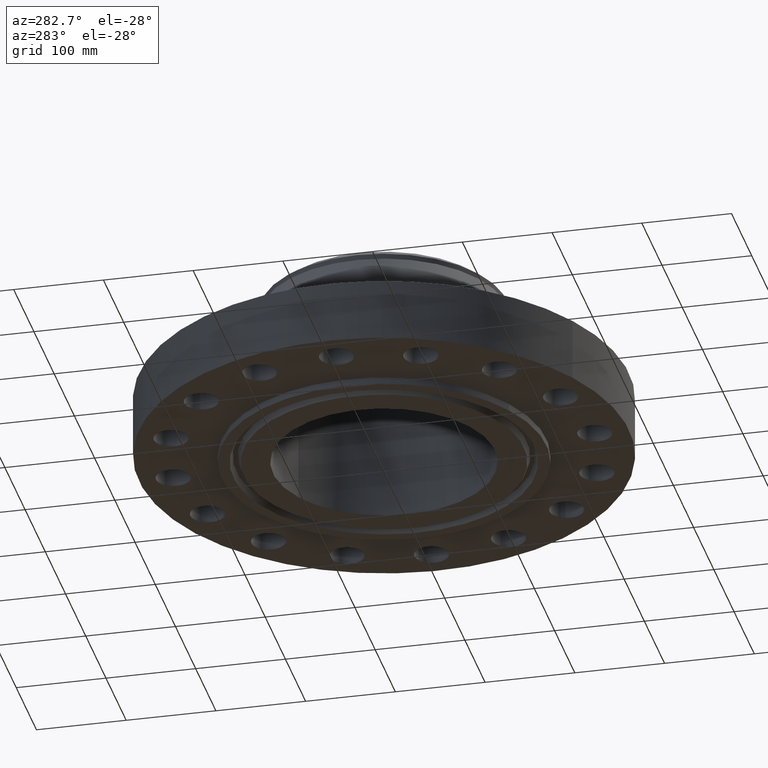
[diagram: clean part render]
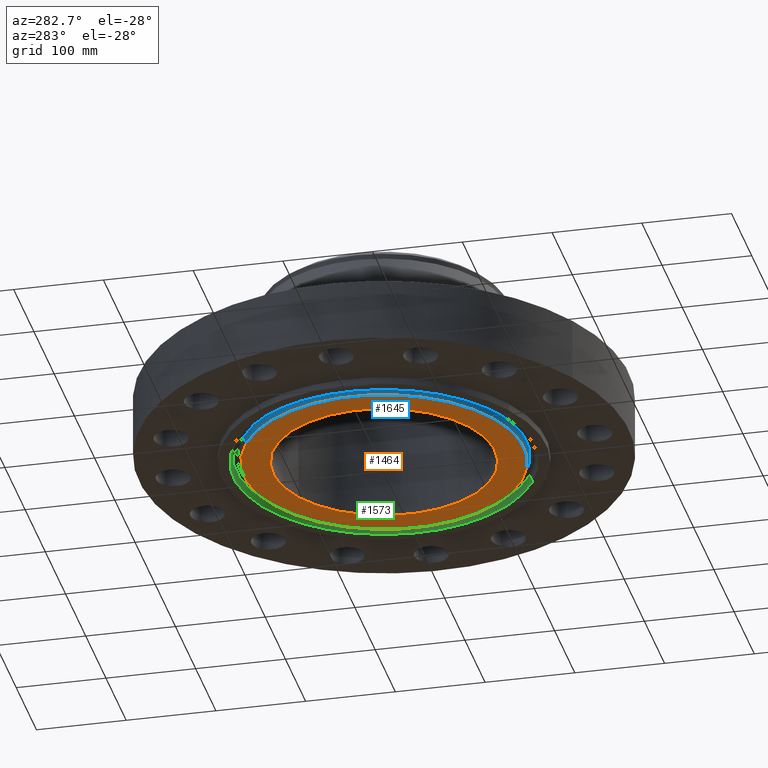
[diagram: same view with three faces highlighted in distinct colors, each labeled with its STEP entity id]
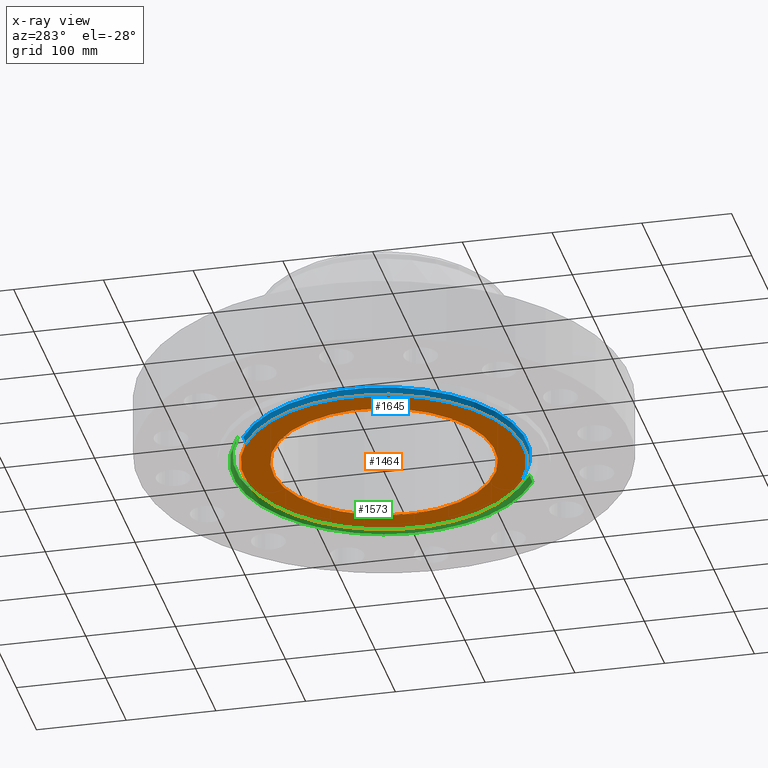
[diagram: x-ray of the same camera — body ghosted, the three highlighted faces saturated]
A machine part, auxiliary view with three faces highlighted in distinct colors.
The next image is the same camera in x-ray (body ghosted, the three faces saturated) — at least one of them is partly hidden behind the body in this view.
Their STEP definitions:

[orange] entity #1464 — the highlighted planar face has unit normal (0, 0, -1).
#363=AXIS2_PLACEMENT_3D('Circle Axis2P3D',#361,#362,$) ;
#387=AXIS2_PLACEMENT_3D('Circle Axis2P3D',#385,#386,$) ;
#1417=AXIS2_PLACEMENT_3D('Plane Axis2P3D',#1414,#1415,#1416) ;
#1444=AXIS2_PLACEMENT_3D('Circle Axis2P3D',#1442,#1443,$) ;
#1453=AXIS2_PLACEMENT_3D('Circle Axis2P3D',#1451,#1452,$) ;
#358=CARTESIAN_POINT('Vertex',(2.3371995007,4.27821498923,-0.312500000001)) ;
#361=CARTESIAN_POINT('Axis2P3D Location',(0.,0.,-0.312500000001)) ;
#365=CARTESIAN_POINT('Vertex',(-2.3371995007,-4.27821498923,-0.312500000001)) ;
#385=CARTESIAN_POINT('Axis2P3D Location',(0.,0.,-0.312500000001)) ;
#1414=CARTESIAN_POINT('Axis2P3D Location',(0.,4.87500000002,-0.312500000001)) ;
#1442=CARTESIAN_POINT('Axis2P3D Location',(5.59482469102E-016,-1.1189649382E-015,-0.312500000001)) ;
#1446=CARTESIAN_POINT('Vertex',(-2.94396046236,5.38888347957,-0.312500000001)) ;
#1448=CARTESIAN_POINT('Vertex',(2.94396046236,-5.38888347957,-0.312500000001)) ;
#1451=CARTESIAN_POINT('Axis2P3D Location',(-1.1189649382E-015,1.1189649382E-015,-0.312500000001)) ;
#362=DIRECTION('Axis2P3D Direction',(0.,0.,-0.0393700787402)) ;
#386=DIRECTION('Axis2P3D Direction',(0.,0.,-0.0393700787402)) ;
#1415=DIRECTION('Axis2P3D Direction',(0.,0.,-0.0393700787402)) ;
#1416=DIRECTION('Axis2P3D XDirection',(0.0393700787402,0.,0.)) ;
#1443=DIRECTION('Axis2P3D Direction',(0.,0.,-0.0393700787402)) ;
#1452=DIRECTION('Axis2P3D Direction',(0.,0.,-0.0393700787402)) ;
#1457=ORIENTED_EDGE('',*,*,#1450,.T.) ;
#1458=ORIENTED_EDGE('',*,*,#1455,.T.) ;
#1461=ORIENTED_EDGE('',*,*,#367,.F.) ;
#1462=ORIENTED_EDGE('',*,*,#389,.F.) ;
#1463=FACE_BOUND('',#1460,.T.) ;
#1464=ADVANCED_FACE('PartBody',(#1459,#1463),#1418,.T.) ;
#364=CIRCLE('generated circle',#363,4.87500000002) ;
#388=CIRCLE('generated circle',#387,4.87500000002) ;
#1445=CIRCLE('generated circle',#1444,6.14060000002) ;
#1454=CIRCLE('generated circle',#1453,6.14060000002) ;
#367=EDGE_CURVE('',#359,#366,#364,.T.) ;
#389=EDGE_CURVE('',#366,#359,#388,.T.) ;
#1450=EDGE_CURVE('',#1447,#1449,#1445,.T.) ;
#1455=EDGE_CURVE('',#1449,#1447,#1454,.T.) ;
#1456=EDGE_LOOP('',(#1457,#1458)) ;
#1460=EDGE_LOOP('',(#1461,#1462)) ;
#1459=FACE_OUTER_BOUND('',#1456,.T.) ;
#1418=PLANE('',#1417) ;
#359=VERTEX_POINT('',#358) ;
#366=VERTEX_POINT('',#365) ;
#1447=VERTEX_POINT('',#1446) ;
#1449=VERTEX_POINT('',#1448) ;

[blue] entity #1645 — the highlighted conical surface has half-angle 23 deg.
#1453=AXIS2_PLACEMENT_3D('Circle Axis2P3D',#1451,#1452,$) ;
#1607=AXIS2_PLACEMENT_3D('Circle Axis2P3D',#1605,#1606,$) ;
#1620=AXIS2_PLACEMENT_3D('Cone Axis2P3D',#1617,#1618,#1619) ;
#1446=CARTESIAN_POINT('Vertex',(-2.94396046236,5.38888347957,-0.312500000001)) ;
#1448=CARTESIAN_POINT('Vertex',(2.94396046236,-5.38888347957,-0.312500000001)) ;
#1451=CARTESIAN_POINT('Axis2P3D Location',(-1.1189649382E-015,1.1189649382E-015,-0.312500000001)) ;
#1583=CARTESIAN_POINT('Vertex',(3.00367463732,-5.49818954363,-0.0190701156784)) ;
#1590=CARTESIAN_POINT('Vertex',(-3.00367463732,5.49818954363,-0.0190701156784)) ;
#1605=CARTESIAN_POINT('Axis2P3D Location',(0.,0.,-0.0190701156784)) ;
#1617=CARTESIAN_POINT('Axis2P3D Location',(0.,0.,-0.372500000001)) ;
#1622=CARTESIAN_POINT('Line Origine',(-2.97381754984,5.4435365116,-0.16578505784)) ;
#1627=CARTESIAN_POINT('Line Origine',(2.97381754984,-5.4435365116,-0.16578505784)) ;
#1452=DIRECTION('Axis2P3D Direction',(0.,0.,-0.0393700787402)) ;
#1606=DIRECTION('Axis2P3D Direction',(0.,0.,0.0393700787402)) ;
#1618=DIRECTION('Axis2P3D Direction',(0.,0.,0.0393700787402)) ;
#1619=DIRECTION('Axis2P3D XDirection',(-0.0188750212049,0.0345504945626,0.)) ;
#1623=DIRECTION('Vector Direction',(-0.00737505833565,0.0134999537303,0.0362403485611)) ;
#1628=DIRECTION('Vector Direction',(0.00737505833565,-0.0134999537303,0.0362403485611)) ;
#1624=VECTOR('Line Direction',#1623,0.0393700787402) ;
#1629=VECTOR('Line Direction',#1628,0.0393700787402) ;
#1640=ORIENTED_EDGE('',*,*,#1631,.F.) ;
#1641=ORIENTED_EDGE('',*,*,#1609,.F.) ;
#1642=ORIENTED_EDGE('',*,*,#1626,.T.) ;
#1643=ORIENTED_EDGE('',*,*,#1455,.F.) ;
#1645=ADVANCED_FACE('PartBody',(#1644),#1621,.T.) ;
#1454=CIRCLE('generated circle',#1453,6.14060000002) ;
#1608=CIRCLE('generated circle',#1607,6.26515359624) ;
#1621=CONICAL_SURFACE('Cone',#1620,6.11513151105,0.401425727959) ;
#1455=EDGE_CURVE('',#1449,#1447,#1454,.T.) ;
#1609=EDGE_CURVE('',#1591,#1584,#1608,.T.) ;
#1626=EDGE_CURVE('',#1591,#1447,#1625,.F.) ;
#1631=EDGE_CURVE('',#1584,#1449,#1630,.F.) ;
#1639=EDGE_LOOP('',(#1640,#1641,#1642,#1643)) ;
#1644=FACE_OUTER_BOUND('',#1639,.T.) ;
#1625=LINE('Line',#1622,#1624) ;
#1630=LINE('Line',#1627,#1629) ;
#1447=VERTEX_POINT('',#1446) ;
#1449=VERTEX_POINT('',#1448) ;
#1584=VERTEX_POINT('',#1583) ;
#1591=VERTEX_POINT('',#1590) ;

[green] entity #1573 — the highlighted conical surface has half-angle 23 deg.
#1434=AXIS2_PLACEMENT_3D('Circle Axis2P3D',#1432,#1433,$) ;
#1508=AXIS2_PLACEMENT_3D('Cone Axis2P3D',#1505,#1506,#1507) ;
#1529=AXIS2_PLACEMENT_3D('Circle Axis2P3D',#1527,#1528,$) ;
#1427=CARTESIAN_POINT('Vertex',(3.16871515486,-5.80029418458,-0.312500000001)) ;
#1429=CARTESIAN_POINT('Vertex',(-3.16871515486,5.80029418458,-0.312500000001)) ;
#1432=CARTESIAN_POINT('Axis2P3D Location',(-2.79741234551E-016,-1.1189649382E-015,-0.312500000001)) ;
#1474=CARTESIAN_POINT('Vertex',(-3.10900097991,5.69098812052,-0.0190701156784)) ;
#1476=CARTESIAN_POINT('Vertex',(3.10900097991,-5.69098812052,-0.0190701156784)) ;
#1505=CARTESIAN_POINT('Axis2P3D Location',(0.,0.,-0.0190701156784)) ;
#1510=CARTESIAN_POINT('Line Origine',(-3.13885806739,5.74564115255,-0.16578505784)) ;
#1515=CARTESIAN_POINT('Line Origine',(3.13885806739,-5.74564115255,-0.16578505784)) ;
#1527=CARTESIAN_POINT('Axis2P3D Location',(0.,0.,-0.0190701156784)) ;
#1433=DIRECTION('Axis2P3D Direction',(0.,0.,-0.0393700787402)) ;
#1506=DIRECTION('Axis2P3D Direction',(-0.,-0.,-0.0393700787402)) ;
#1507=DIRECTION('Axis2P3D XDirection',(-0.0188750212049,0.0345504945626,0.)) ;
#1511=DIRECTION('Vector Direction',(-0.00737505833565,0.0134999537303,-0.0362403485611)) ;
#1516=DIRECTION('Vector Direction',(0.00737505833565,-0.0134999537303,-0.0362403485611)) ;
#1528=DIRECTION('Axis2P3D Direction',(0.,0.,0.0393700787402)) ;
#1512=VECTOR('Line Direction',#1511,0.0393700787402) ;
#1517=VECTOR('Line Direction',#1516,0.0393700787402) ;
#1568=ORIENTED_EDGE('',*,*,#1436,.T.) ;
#1569=ORIENTED_EDGE('',*,*,#1519,.T.) ;
#1570=ORIENTED_EDGE('',*,*,#1531,.T.) ;
#1571=ORIENTED_EDGE('',*,*,#1514,.F.) ;
#1573=ADVANCED_FACE('PartBody',(#1572),#1509,.F.) ;
#1435=CIRCLE('generated circle',#1434,6.60940000003) ;
#1530=CIRCLE('generated circle',#1529,6.48484640381) ;
#1509=CONICAL_SURFACE('Cone',#1508,6.48484640381,0.401425727959) ;
#1436=EDGE_CURVE('',#1430,#1428,#1435,.T.) ;
#1514=EDGE_CURVE('',#1430,#1475,#1513,.F.) ;
#1519=EDGE_CURVE('',#1428,#1477,#1518,.F.) ;
#1531=EDGE_CURVE('',#1477,#1475,#1530,.T.) ;
#1567=EDGE_LOOP('',(#1568,#1569,#1570,#1571)) ;
#1572=FACE_OUTER_BOUND('',#1567,.T.) ;
#1513=LINE('Line',#1510,#1512) ;
#1518=LINE('Line',#1515,#1517) ;
#1428=VERTEX_POINT('',#1427) ;
#1430=VERTEX_POINT('',#1429) ;
#1475=VERTEX_POINT('',#1474) ;
#1477=VERTEX_POINT('',#1476) ;